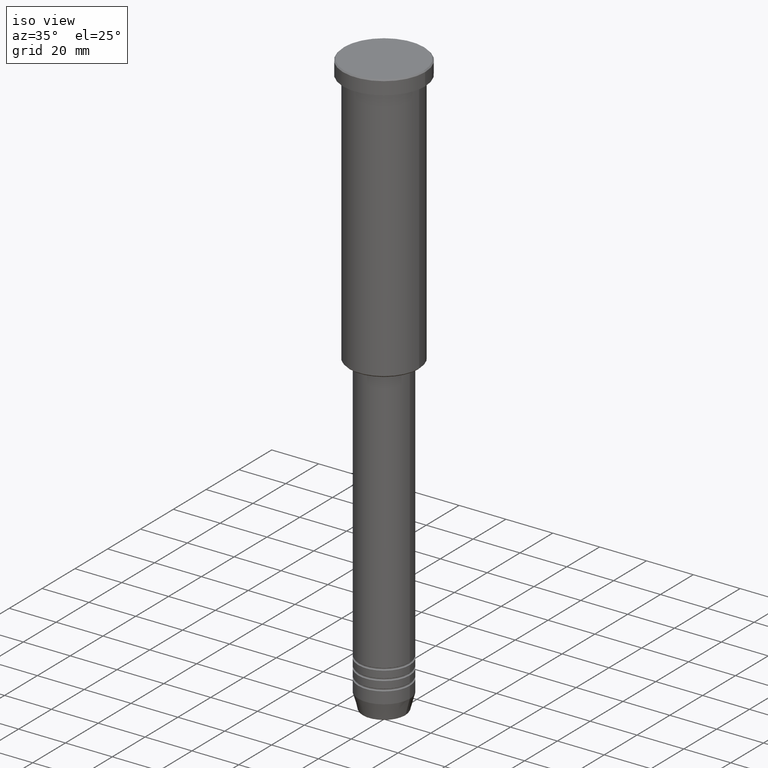
[diagram: clean part render]
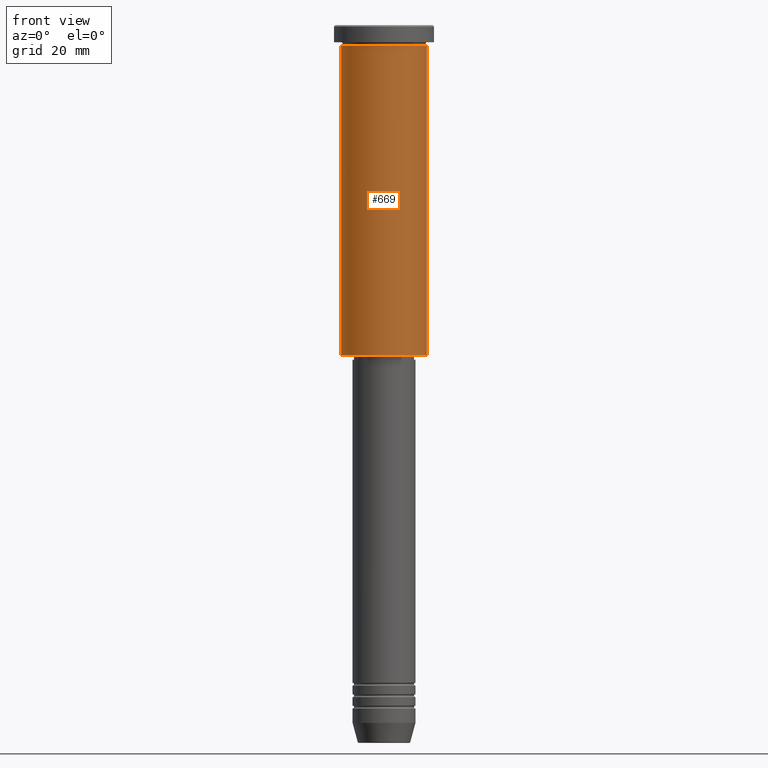
[diagram: tour spotlight — one face highlighted and labeled with its STEP entity id]
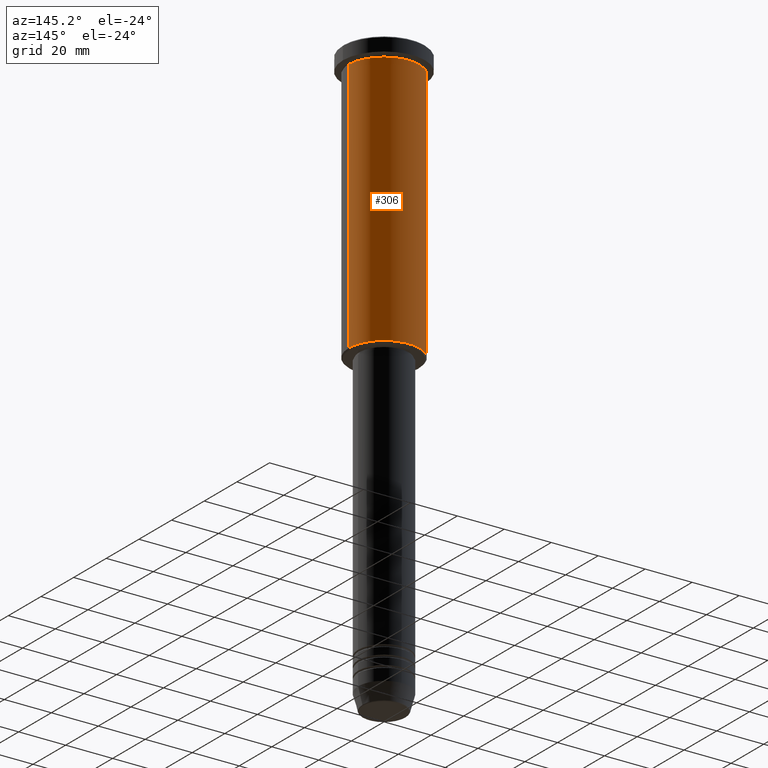
[diagram: tour spotlight — one face highlighted and labeled with its STEP entity id]
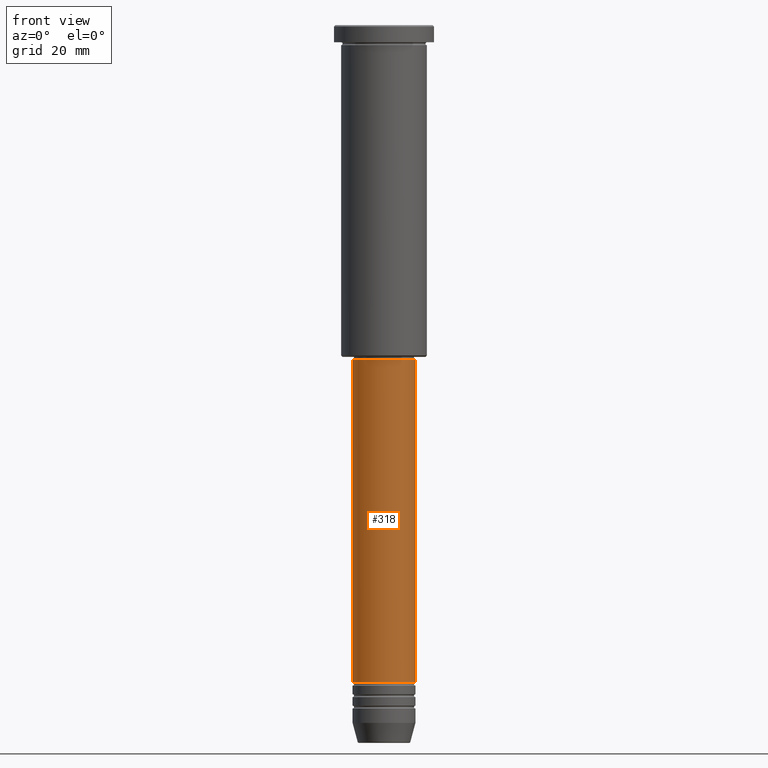
[diagram: tour spotlight — one face highlighted and labeled with its STEP entity id]
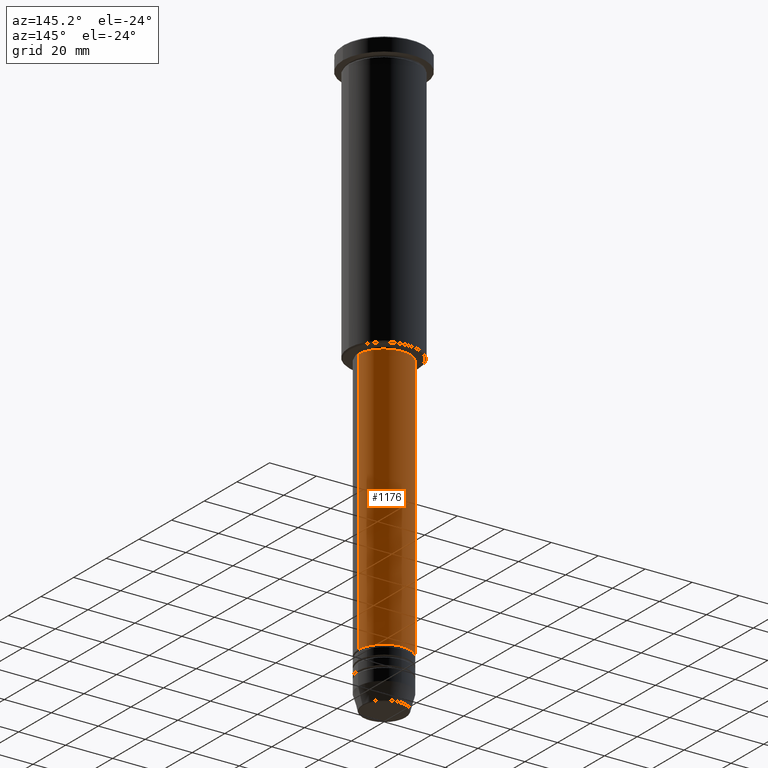
[diagram: tour spotlight — one face highlighted and labeled with its STEP entity id]
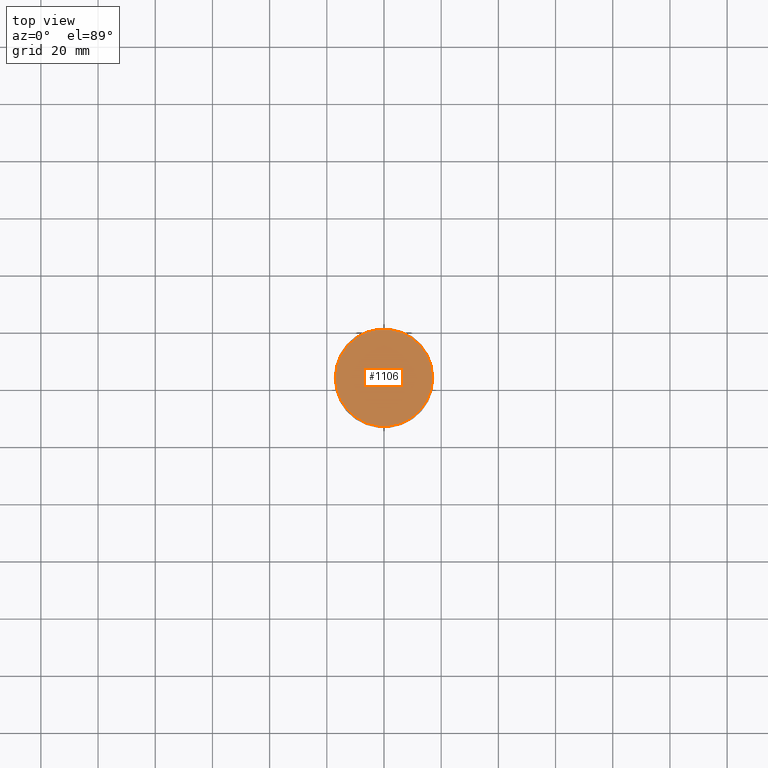
[diagram: tour spotlight — one face highlighted and labeled with its STEP entity id]
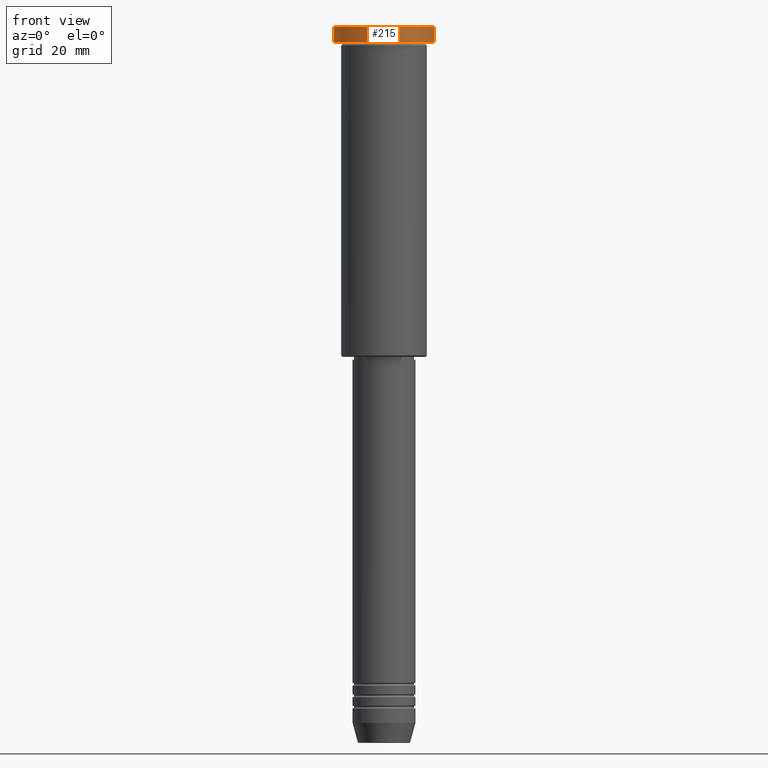
[diagram: tour spotlight — one face highlighted and labeled with its STEP entity id]
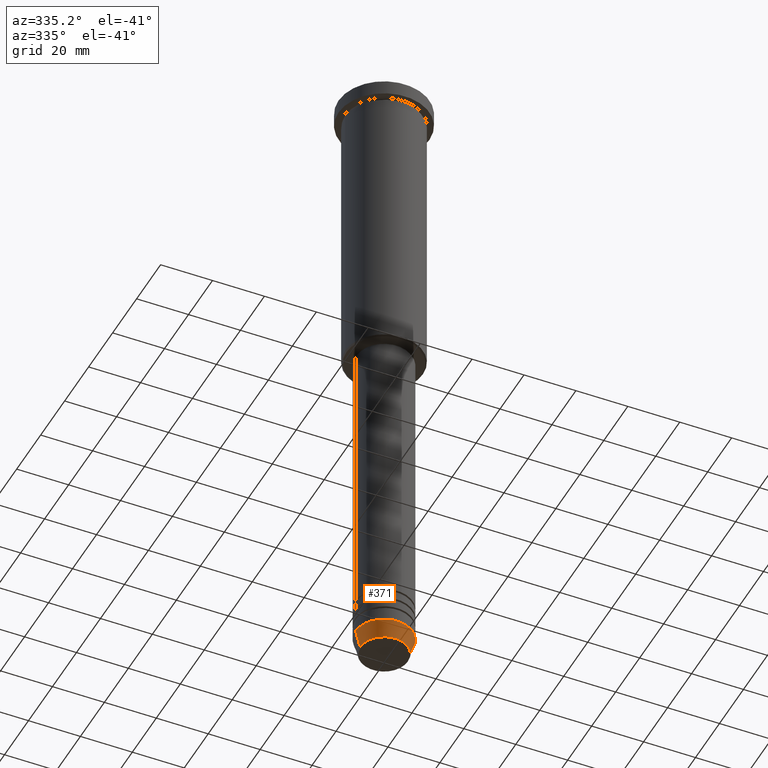
[diagram: tour spotlight — one face highlighted and labeled with its STEP entity id]
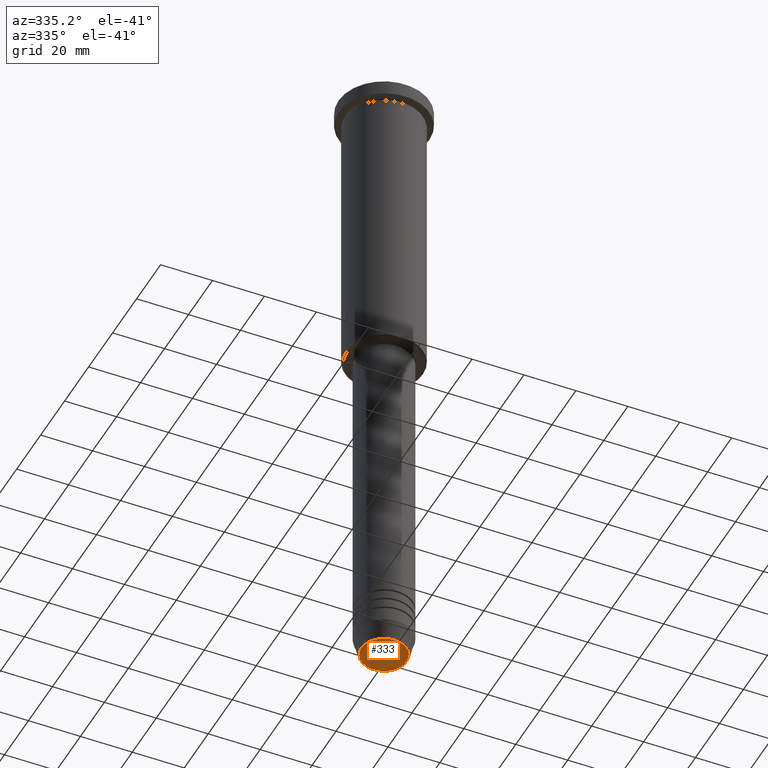
[diagram: tour spotlight — one face highlighted and labeled with its STEP entity id]
A machine part: a face-by-face anatomy tour. The part has 43 B-rep faces; the first image is the clean iso view, then the 8 largest visible faces are spotlighted one at a time (largest first), each with its STEP entity span.

Face 1 — front view, entity #669. In plain terms, the highlighted cylindrical surface (partial cylindrical patch) has radius 15 mm, axis along (-0, -0, 1).
Definition (entity closure, byte-faithful):
#95 = EDGE_CURVE ( 'NONE', #477, #619, #399, .T. ) ;
#112 = VECTOR ( 'NONE', #203, 1000.000000000000000 ) ;
#150 = DIRECTION ( 'NONE',  ( -0.000000000000000000, -0.000000000000000000, 1.000000000000000000 ) ) ;
#158 = CARTESIAN_POINT ( 'NONE',  ( 0.000000000000000000, 0.000000000000000000, -6.999999999999995559 ) ) ;
#195 = EDGE_CURVE ( 'NONE', #619, #656, #395, .T. ) ;
#203 = DIRECTION ( 'NONE',  ( -0.000000000000000000, -0.000000000000000000, 1.000000000000000000 ) ) ;
#204 = CARTESIAN_POINT ( 'NONE',  ( -15.00000000000000000, 1.836970198721029589E-15, -6.999999999999995559 ) ) ;
#253 = EDGE_CURVE ( 'NONE', #477, #693, #363, .T. ) ;
#290 = AXIS2_PLACEMENT_3D ( 'NONE', #158, #341, #436 ) ;
#298 = ORIENTED_EDGE ( 'NONE', *, *, #890, .T. ) ;
#301 = CARTESIAN_POINT ( 'NONE',  ( 15.00000000000000000, 0.000000000000000000, -115.5000000000000000 ) ) ;
#317 = CARTESIAN_POINT ( 'NONE',  ( 15.00000000000000000, 0.000000000000000000, 0.000000000000000000 ) ) ;
#328 = AXIS2_PLACEMENT_3D ( 'NONE', #1114, #947, #1107 ) ;
#332 = EDGE_LOOP ( 'NONE', ( #971, #746, #298, #473 ) ) ;
#341 = DIRECTION ( 'NONE',  ( -0.000000000000000000, -0.000000000000000000, 1.000000000000000000 ) ) ;
#363 = CIRCLE ( 'NONE', #959, 15.00000000000000000 ) ;
#395 = CIRCLE ( 'NONE', #290, 15.00000000000000000 ) ;
#396 = CARTESIAN_POINT ( 'NONE',  ( -15.00000000000000000, 1.836970198721029589E-15, -115.5000000000000000 ) ) ;
#399 = LINE ( 'NONE', #771, #112 ) ;
#436 = DIRECTION ( 'NONE',  ( 1.000000000000000000, 0.000000000000000000, 0.000000000000000000 ) ) ;
#473 = ORIENTED_EDGE ( 'NONE', *, *, #195, .F. ) ;
#477 = VERTEX_POINT ( 'NONE', #396 ) ;
#526 = VECTOR ( 'NONE', #150, 1000.000000000000000 ) ;
#552 = DIRECTION ( 'NONE',  ( -0.000000000000000000, -0.000000000000000000, 1.000000000000000000 ) ) ;
#556 = CARTESIAN_POINT ( 'NONE',  ( 15.00000000000000000, 0.000000000000000000, -6.999999999999995559 ) ) ;
#615 = LINE ( 'NONE', #317, #526 ) ;
#616 = CARTESIAN_POINT ( 'NONE',  ( 0.000000000000000000, 0.000000000000000000, -115.5000000000000000 ) ) ;
#619 = VERTEX_POINT ( 'NONE', #204 ) ;
#656 = VERTEX_POINT ( 'NONE', #556 ) ;
#669 = ADVANCED_FACE ( 'NONE', ( #762 ), #835, .T. ) ;
#693 = VERTEX_POINT ( 'NONE', #301 ) ;
#746 = ORIENTED_EDGE ( 'NONE', *, *, #253, .T. ) ;
#762 = FACE_OUTER_BOUND ( 'NONE', #332, .T. ) ;
#771 = CARTESIAN_POINT ( 'NONE',  ( -15.00000000000000000, 1.836970198721029589E-15, 0.000000000000000000 ) ) ;
#835 = CYLINDRICAL_SURFACE ( 'NONE', #328, 15.00000000000000000 ) ;
#890 = EDGE_CURVE ( 'NONE', #693, #656, #615, .T. ) ;
#947 = DIRECTION ( 'NONE',  ( -0.000000000000000000, -0.000000000000000000, 1.000000000000000000 ) ) ;
#959 = AXIS2_PLACEMENT_3D ( 'NONE', #616, #552, #984 ) ;
#971 = ORIENTED_EDGE ( 'NONE', *, *, #95, .F. ) ;
#984 = DIRECTION ( 'NONE',  ( -1.000000000000000000, 0.000000000000000000, 0.000000000000000000 ) ) ;
#1107 = DIRECTION ( 'NONE',  ( 1.000000000000000000, 0.000000000000000000, 0.000000000000000000 ) ) ;
#1114 = CARTESIAN_POINT ( 'NONE',  ( 0.000000000000000000, 0.000000000000000000, 0.000000000000000000 ) ) ;

Face 2 — auxiliary view, entity #306. In plain terms, the highlighted cylindrical surface (partial cylindrical patch) has radius 15 mm, axis along (-0, -0, 1).
Definition (entity closure, byte-faithful):
#46 = CARTESIAN_POINT ( 'NONE',  ( 0.000000000000000000, 0.000000000000000000, -6.999999999999995559 ) ) ;
#88 = DIRECTION ( 'NONE',  ( -0.000000000000000000, -0.000000000000000000, 1.000000000000000000 ) ) ;
#95 = EDGE_CURVE ( 'NONE', #477, #619, #399, .T. ) ;
#112 = VECTOR ( 'NONE', #203, 1000.000000000000000 ) ;
#133 = DIRECTION ( 'NONE',  ( 1.000000000000000000, 0.000000000000000000, 0.000000000000000000 ) ) ;
#150 = DIRECTION ( 'NONE',  ( -0.000000000000000000, -0.000000000000000000, 1.000000000000000000 ) ) ;
#186 = CARTESIAN_POINT ( 'NONE',  ( 0.000000000000000000, 0.000000000000000000, -115.5000000000000000 ) ) ;
#188 = ORIENTED_EDGE ( 'NONE', *, *, #95, .T. ) ;
#203 = DIRECTION ( 'NONE',  ( -0.000000000000000000, -0.000000000000000000, 1.000000000000000000 ) ) ;
#204 = CARTESIAN_POINT ( 'NONE',  ( -15.00000000000000000, 1.836970198721029589E-15, -6.999999999999995559 ) ) ;
#301 = CARTESIAN_POINT ( 'NONE',  ( 15.00000000000000000, 0.000000000000000000, -115.5000000000000000 ) ) ;
#306 = ADVANCED_FACE ( 'NONE', ( #701 ), #507, .T. ) ;
#317 = CARTESIAN_POINT ( 'NONE',  ( 15.00000000000000000, 0.000000000000000000, 0.000000000000000000 ) ) ;
#347 = AXIS2_PLACEMENT_3D ( 'NONE', #186, #929, #847 ) ;
#355 = ORIENTED_EDGE ( 'NONE', *, *, #661, .T. ) ;
#378 = CIRCLE ( 'NONE', #688, 15.00000000000000000 ) ;
#396 = CARTESIAN_POINT ( 'NONE',  ( -15.00000000000000000, 1.836970198721029589E-15, -115.5000000000000000 ) ) ;
#399 = LINE ( 'NONE', #771, #112 ) ;
#420 = ORIENTED_EDGE ( 'NONE', *, *, #890, .F. ) ;
#421 = DIRECTION ( 'NONE',  ( -0.000000000000000000, -0.000000000000000000, 1.000000000000000000 ) ) ;
#458 = ORIENTED_EDGE ( 'NONE', *, *, #467, .F. ) ;
#467 = EDGE_CURVE ( 'NONE', #656, #619, #378, .T. ) ;
#477 = VERTEX_POINT ( 'NONE', #396 ) ;
#507 = CYLINDRICAL_SURFACE ( 'NONE', #1112, 15.00000000000000000 ) ;
#526 = VECTOR ( 'NONE', #150, 1000.000000000000000 ) ;
#556 = CARTESIAN_POINT ( 'NONE',  ( 15.00000000000000000, 0.000000000000000000, -6.999999999999995559 ) ) ;
#615 = LINE ( 'NONE', #317, #526 ) ;
#619 = VERTEX_POINT ( 'NONE', #204 ) ;
#644 = CIRCLE ( 'NONE', #347, 15.00000000000000000 ) ;
#656 = VERTEX_POINT ( 'NONE', #556 ) ;
#661 = EDGE_CURVE ( 'NONE', #693, #477, #644, .T. ) ;
#688 = AXIS2_PLACEMENT_3D ( 'NONE', #46, #421, #133 ) ;
#693 = VERTEX_POINT ( 'NONE', #301 ) ;
#701 = FACE_OUTER_BOUND ( 'NONE', #923, .T. ) ;
#737 = DIRECTION ( 'NONE',  ( 1.000000000000000000, 0.000000000000000000, 0.000000000000000000 ) ) ;
#771 = CARTESIAN_POINT ( 'NONE',  ( -15.00000000000000000, 1.836970198721029589E-15, 0.000000000000000000 ) ) ;
#847 = DIRECTION ( 'NONE',  ( -1.000000000000000000, 0.000000000000000000, 0.000000000000000000 ) ) ;
#890 = EDGE_CURVE ( 'NONE', #693, #656, #615, .T. ) ;
#921 = CARTESIAN_POINT ( 'NONE',  ( 0.000000000000000000, 0.000000000000000000, 0.000000000000000000 ) ) ;
#923 = EDGE_LOOP ( 'NONE', ( #355, #188, #458, #420 ) ) ;
#929 = DIRECTION ( 'NONE',  ( -0.000000000000000000, -0.000000000000000000, 1.000000000000000000 ) ) ;
#1112 = AXIS2_PLACEMENT_3D ( 'NONE', #921, #88, #737 ) ;

Face 3 — front view, entity #318. In plain terms, the highlighted cylindrical surface (edge-blend (fillet) strip) has radius 11 mm, axis along (-0, -0, 1).
Definition (entity closure, byte-faithful):
#20 = AXIS2_PLACEMENT_3D ( 'NONE', #974, #151, #1122 ) ;
#31 = EDGE_CURVE ( 'NONE', #804, #877, #686, .T. ) ;
#51 = VERTEX_POINT ( 'NONE', #501 ) ;
#56 = CARTESIAN_POINT ( 'NONE',  ( -11.00000000000000000, 1.347111479062088405E-15, 0.000000000000000000 ) ) ;
#63 = DIRECTION ( 'NONE',  ( -0.000000000000000000, -0.000000000000000000, 1.000000000000000000 ) ) ;
#102 = AXIS2_PLACEMENT_3D ( 'NONE', #575, #672, #216 ) ;
#147 = ORIENTED_EDGE ( 'NONE', *, *, #1002, .F. ) ;
#151 = DIRECTION ( 'NONE',  ( -0.000000000000000000, -0.000000000000000000, 1.000000000000000000 ) ) ;
#178 = VECTOR ( 'NONE', #63, 1000.000000000000000 ) ;
#193 = ORIENTED_EDGE ( 'NONE', *, *, #274, .F. ) ;
#216 = DIRECTION ( 'NONE',  ( 1.000000000000000000, 0.000000000000000000, 0.000000000000000000 ) ) ;
#224 = CARTESIAN_POINT ( 'NONE',  ( -11.00000000000000000, 1.347111479062088405E-15, -229.9999999999998863 ) ) ;
#274 = EDGE_CURVE ( 'NONE', #804, #704, #527, .T. ) ;
#280 = LINE ( 'NONE', #1015, #178 ) ;
#281 = FACE_OUTER_BOUND ( 'NONE', #826, .T. ) ;
#284 = CARTESIAN_POINT ( 'NONE',  ( -11.00000000000000000, 1.347111479062088405E-15, -117.0000000000000142 ) ) ;
#318 = ADVANCED_FACE ( 'NONE', ( #281 ), #606, .T. ) ;
#463 = DIRECTION ( 'NONE',  ( -0.000000000000000000, -0.000000000000000000, 1.000000000000000000 ) ) ;
#466 = DIRECTION ( 'NONE',  ( -0.000000000000000000, -0.000000000000000000, 1.000000000000000000 ) ) ;
#501 = CARTESIAN_POINT ( 'NONE',  ( 11.00000000000000000, 0.000000000000000000, -117.0000000000000142 ) ) ;
#527 = LINE ( 'NONE', #56, #731 ) ;
#550 = CARTESIAN_POINT ( 'NONE',  ( 0.000000000000000000, 0.000000000000000000, -229.9999999999998863 ) ) ;
#575 = CARTESIAN_POINT ( 'NONE',  ( 0.000000000000000000, 0.000000000000000000, -117.0000000000000142 ) ) ;
#583 = EDGE_CURVE ( 'NONE', #877, #51, #280, .T. ) ;
#606 = CYLINDRICAL_SURFACE ( 'NONE', #20, 11.00000000000000000 ) ;
#672 = DIRECTION ( 'NONE',  ( -0.000000000000000000, -0.000000000000000000, 1.000000000000000000 ) ) ;
#686 = CIRCLE ( 'NONE', #1130, 11.00000000000000000 ) ;
#704 = VERTEX_POINT ( 'NONE', #284 ) ;
#731 = VECTOR ( 'NONE', #466, 1000.000000000000000 ) ;
#804 = VERTEX_POINT ( 'NONE', #224 ) ;
#826 = EDGE_LOOP ( 'NONE', ( #193, #1028, #986, #147 ) ) ;
#834 = DIRECTION ( 'NONE',  ( 1.000000000000000000, 0.000000000000000000, 0.000000000000000000 ) ) ;
#870 = CIRCLE ( 'NONE', #102, 11.00000000000000000 ) ;
#877 = VERTEX_POINT ( 'NONE', #886 ) ;
#886 = CARTESIAN_POINT ( 'NONE',  ( 11.00000000000000000, 0.000000000000000000, -229.9999999999998863 ) ) ;
#974 = CARTESIAN_POINT ( 'NONE',  ( 0.000000000000000000, 0.000000000000000000, 0.000000000000000000 ) ) ;
#986 = ORIENTED_EDGE ( 'NONE', *, *, #583, .T. ) ;
#1002 = EDGE_CURVE ( 'NONE', #704, #51, #870, .T. ) ;
#1015 = CARTESIAN_POINT ( 'NONE',  ( 11.00000000000000000, 0.000000000000000000, 0.000000000000000000 ) ) ;
#1028 = ORIENTED_EDGE ( 'NONE', *, *, #31, .T. ) ;
#1122 = DIRECTION ( 'NONE',  ( 1.000000000000000000, 0.000000000000000000, 0.000000000000000000 ) ) ;
#1130 = AXIS2_PLACEMENT_3D ( 'NONE', #550, #463, #834 ) ;

Face 4 — auxiliary view, entity #1176. In plain terms, the highlighted cylindrical surface (edge-blend (fillet) strip) has radius 11 mm, axis along (-0, -0, 1).
Definition (entity closure, byte-faithful):
#25 = AXIS2_PLACEMENT_3D ( 'NONE', #538, #457, #650 ) ;
#51 = VERTEX_POINT ( 'NONE', #501 ) ;
#53 = EDGE_CURVE ( 'NONE', #877, #804, #770, .T. ) ;
#56 = CARTESIAN_POINT ( 'NONE',  ( -11.00000000000000000, 1.347111479062088405E-15, 0.000000000000000000 ) ) ;
#63 = DIRECTION ( 'NONE',  ( -0.000000000000000000, -0.000000000000000000, 1.000000000000000000 ) ) ;
#83 = DIRECTION ( 'NONE',  ( 1.000000000000000000, 0.000000000000000000, 0.000000000000000000 ) ) ;
#90 = CYLINDRICAL_SURFACE ( 'NONE', #561, 11.00000000000000000 ) ;
#176 = FACE_OUTER_BOUND ( 'NONE', #630, .T. ) ;
#178 = VECTOR ( 'NONE', #63, 1000.000000000000000 ) ;
#208 = DIRECTION ( 'NONE',  ( -0.000000000000000000, -0.000000000000000000, 1.000000000000000000 ) ) ;
#224 = CARTESIAN_POINT ( 'NONE',  ( -11.00000000000000000, 1.347111479062088405E-15, -229.9999999999998863 ) ) ;
#255 = AXIS2_PLACEMENT_3D ( 'NONE', #487, #208, #1145 ) ;
#274 = EDGE_CURVE ( 'NONE', #804, #704, #527, .T. ) ;
#280 = LINE ( 'NONE', #1015, #178 ) ;
#284 = CARTESIAN_POINT ( 'NONE',  ( -11.00000000000000000, 1.347111479062088405E-15, -117.0000000000000142 ) ) ;
#293 = ORIENTED_EDGE ( 'NONE', *, *, #274, .T. ) ;
#457 = DIRECTION ( 'NONE',  ( -0.000000000000000000, -0.000000000000000000, 1.000000000000000000 ) ) ;
#461 = DIRECTION ( 'NONE',  ( -0.000000000000000000, -0.000000000000000000, 1.000000000000000000 ) ) ;
#466 = DIRECTION ( 'NONE',  ( -0.000000000000000000, -0.000000000000000000, 1.000000000000000000 ) ) ;
#487 = CARTESIAN_POINT ( 'NONE',  ( 0.000000000000000000, 0.000000000000000000, -229.9999999999998863 ) ) ;
#501 = CARTESIAN_POINT ( 'NONE',  ( 11.00000000000000000, 0.000000000000000000, -117.0000000000000142 ) ) ;
#527 = LINE ( 'NONE', #56, #731 ) ;
#538 = CARTESIAN_POINT ( 'NONE',  ( 0.000000000000000000, 0.000000000000000000, -117.0000000000000142 ) ) ;
#549 = CARTESIAN_POINT ( 'NONE',  ( 0.000000000000000000, 0.000000000000000000, 0.000000000000000000 ) ) ;
#561 = AXIS2_PLACEMENT_3D ( 'NONE', #549, #461, #83 ) ;
#583 = EDGE_CURVE ( 'NONE', #877, #51, #280, .T. ) ;
#630 = EDGE_LOOP ( 'NONE', ( #708, #293, #927, #891 ) ) ;
#650 = DIRECTION ( 'NONE',  ( 1.000000000000000000, 0.000000000000000000, 0.000000000000000000 ) ) ;
#704 = VERTEX_POINT ( 'NONE', #284 ) ;
#708 = ORIENTED_EDGE ( 'NONE', *, *, #53, .T. ) ;
#731 = VECTOR ( 'NONE', #466, 1000.000000000000000 ) ;
#770 = CIRCLE ( 'NONE', #255, 11.00000000000000000 ) ;
#804 = VERTEX_POINT ( 'NONE', #224 ) ;
#877 = VERTEX_POINT ( 'NONE', #886 ) ;
#886 = CARTESIAN_POINT ( 'NONE',  ( 11.00000000000000000, 0.000000000000000000, -229.9999999999998863 ) ) ;
#891 = ORIENTED_EDGE ( 'NONE', *, *, #583, .F. ) ;
#927 = ORIENTED_EDGE ( 'NONE', *, *, #1133, .F. ) ;
#1015 = CARTESIAN_POINT ( 'NONE',  ( 11.00000000000000000, 0.000000000000000000, 0.000000000000000000 ) ) ;
#1084 = CIRCLE ( 'NONE', #25, 11.00000000000000000 ) ;
#1133 = EDGE_CURVE ( 'NONE', #51, #704, #1084, .T. ) ;
#1145 = DIRECTION ( 'NONE',  ( 1.000000000000000000, 0.000000000000000000, 0.000000000000000000 ) ) ;
#1176 = ADVANCED_FACE ( 'NONE', ( #176 ), #90, .T. ) ;

Face 5 — top view, entity #1106. In plain terms, the highlighted planar face has unit normal (0, -0, 1).
Definition (entity closure, byte-faithful):
#236 = CARTESIAN_POINT ( 'NONE',  ( 0.000000000000000000, 0.000000000000000000, 0.000000000000000000 ) ) ;
#260 = CARTESIAN_POINT ( 'NONE',  ( 0.000000000000000000, 0.000000000000000000, 0.000000000000000000 ) ) ;
#330 = PLANE ( 'NONE',  #1137 ) ;
#374 = CARTESIAN_POINT ( 'NONE',  ( 0.000000000000000000, 0.000000000000000000, 0.000000000000000000 ) ) ;
#381 = CARTESIAN_POINT ( 'NONE',  ( 16.99999999999996092, 2.112515728529182095E-15, 0.000000000000000000 ) ) ;
#387 = ORIENTED_EDGE ( 'NONE', *, *, #632, .T. ) ;
#503 = DIRECTION ( 'NONE',  ( 1.000000000000000000, 0.000000000000000000, 0.000000000000000000 ) ) ;
#525 = CIRCLE ( 'NONE', #854, 16.99999999999996092 ) ;
#547 = ORIENTED_EDGE ( 'NONE', *, *, #751, .T. ) ;
#594 = DIRECTION ( 'NONE',  ( 0.000000000000000000, -0.000000000000000000, 1.000000000000000000 ) ) ;
#596 = AXIS2_PLACEMENT_3D ( 'NONE', #236, #1046, #951 ) ;
#632 = EDGE_CURVE ( 'NONE', #1000, #641, #525, .T. ) ;
#641 = VERTEX_POINT ( 'NONE', #852 ) ;
#743 = DIRECTION ( 'NONE',  ( 1.000000000000000000, 0.000000000000000000, 0.000000000000000000 ) ) ;
#751 = EDGE_CURVE ( 'NONE', #641, #1000, #1039, .T. ) ;
#852 = CARTESIAN_POINT ( 'NONE',  ( -16.99999999999996092, 0.000000000000000000, 0.000000000000000000 ) ) ;
#854 = AXIS2_PLACEMENT_3D ( 'NONE', #374, #1126, #743 ) ;
#919 = EDGE_LOOP ( 'NONE', ( #547, #387 ) ) ;
#951 = DIRECTION ( 'NONE',  ( 1.000000000000000000, 0.000000000000000000, 0.000000000000000000 ) ) ;
#1000 = VERTEX_POINT ( 'NONE', #381 ) ;
#1039 = CIRCLE ( 'NONE', #596, 16.99999999999996092 ) ;
#1046 = DIRECTION ( 'NONE',  ( -0.000000000000000000, -0.000000000000000000, 1.000000000000000000 ) ) ;
#1049 = FACE_OUTER_BOUND ( 'NONE', #919, .T. ) ;
#1106 = ADVANCED_FACE ( 'NONE', ( #1049 ), #330, .T. ) ;
#1126 = DIRECTION ( 'NONE',  ( -0.000000000000000000, -0.000000000000000000, 1.000000000000000000 ) ) ;
#1137 = AXIS2_PLACEMENT_3D ( 'NONE', #260, #594, #503 ) ;

Face 6 — front view, entity #215. In plain terms, the highlighted cylindrical surface (partial cylindrical patch) has radius 17.5 mm, axis along (-0, -0, 1).
Definition (entity closure, byte-faithful):
#40 = ORIENTED_EDGE ( 'NONE', *, *, #949, .F. ) ;
#113 = LINE ( 'NONE', #1132, #624 ) ;
#132 = ORIENTED_EDGE ( 'NONE', *, *, #779, .T. ) ;
#134 = CARTESIAN_POINT ( 'NONE',  ( -17.50000000000000000, 2.143131898507868248E-15, -0.5000000000000283107 ) ) ;
#135 = AXIS2_PLACEMENT_3D ( 'NONE', #954, #169, #532 ) ;
#153 = DIRECTION ( 'NONE',  ( 0.000000000000000000, 0.000000000000000000, -1.000000000000000000 ) ) ;
#169 = DIRECTION ( 'NONE',  ( -0.000000000000000000, -0.000000000000000000, 1.000000000000000000 ) ) ;
#215 = ADVANCED_FACE ( 'NONE', ( #649 ), #691, .T. ) ;
#237 = VERTEX_POINT ( 'NONE', #925 ) ;
#350 = ORIENTED_EDGE ( 'NONE', *, *, #1069, .T. ) ;
#368 = EDGE_LOOP ( 'NONE', ( #40, #866, #132, #350 ) ) ;
#409 = LINE ( 'NONE', #514, #1041 ) ;
#514 = CARTESIAN_POINT ( 'NONE',  ( -17.50000000000000000, 2.143131898507868248E-15, 0.000000000000000000 ) ) ;
#532 = DIRECTION ( 'NONE',  ( 1.000000000000000000, 0.000000000000000000, 0.000000000000000000 ) ) ;
#560 = CIRCLE ( 'NONE', #914, 17.50000000000000000 ) ;
#624 = VECTOR ( 'NONE', #677, 1000.000000000000000 ) ;
#649 = FACE_OUTER_BOUND ( 'NONE', #368, .T. ) ;
#677 = DIRECTION ( 'NONE',  ( -0.000000000000000000, -0.000000000000000000, 1.000000000000000000 ) ) ;
#691 = CYLINDRICAL_SURFACE ( 'NONE', #865, 17.50000000000000000 ) ;
#712 = DIRECTION ( 'NONE',  ( -0.000000000000000000, -0.000000000000000000, 1.000000000000000000 ) ) ;
#752 = EDGE_CURVE ( 'NONE', #237, #871, #1134, .T. ) ;
#779 = EDGE_CURVE ( 'NONE', #871, #1013, #113, .T. ) ;
#784 = DIRECTION ( 'NONE',  ( 1.000000000000000000, 0.000000000000000000, 0.000000000000000000 ) ) ;
#830 = DIRECTION ( 'NONE',  ( 1.000000000000000000, 0.000000000000000000, 0.000000000000000000 ) ) ;
#865 = AXIS2_PLACEMENT_3D ( 'NONE', #1153, #712, #830 ) ;
#866 = ORIENTED_EDGE ( 'NONE', *, *, #752, .T. ) ;
#871 = VERTEX_POINT ( 'NONE', #1060 ) ;
#876 = CARTESIAN_POINT ( 'NONE',  ( 17.50000000000000000, 0.000000000000000000, -0.5000000000000283107 ) ) ;
#904 = VERTEX_POINT ( 'NONE', #134 ) ;
#914 = AXIS2_PLACEMENT_3D ( 'NONE', #975, #153, #784 ) ;
#925 = CARTESIAN_POINT ( 'NONE',  ( -17.50000000000000000, 2.143131898507868248E-15, -5.999999999999995559 ) ) ;
#949 = EDGE_CURVE ( 'NONE', #237, #904, #409, .T. ) ;
#954 = CARTESIAN_POINT ( 'NONE',  ( 0.000000000000000000, 0.000000000000000000, -5.999999999999995559 ) ) ;
#975 = CARTESIAN_POINT ( 'NONE',  ( 0.000000000000000000, 0.000000000000000000, -0.5000000000000283107 ) ) ;
#1013 = VERTEX_POINT ( 'NONE', #876 ) ;
#1041 = VECTOR ( 'NONE', #1066, 1000.000000000000000 ) ;
#1060 = CARTESIAN_POINT ( 'NONE',  ( 17.50000000000000000, 0.000000000000000000, -5.999999999999995559 ) ) ;
#1066 = DIRECTION ( 'NONE',  ( -0.000000000000000000, -0.000000000000000000, 1.000000000000000000 ) ) ;
#1069 = EDGE_CURVE ( 'NONE', #1013, #904, #560, .T. ) ;
#1132 = CARTESIAN_POINT ( 'NONE',  ( 17.50000000000000000, 0.000000000000000000, 0.000000000000000000 ) ) ;
#1134 = CIRCLE ( 'NONE', #135, 17.50000000000000000 ) ;
#1153 = CARTESIAN_POINT ( 'NONE',  ( 0.000000000000000000, 0.000000000000000000, 0.000000000000000000 ) ) ;

Face 7 — auxiliary view, entity #371. In plain terms, the highlighted conical surface has half-angle 15 deg.
Definition (entity closure, byte-faithful):
#27 = FACE_OUTER_BOUND ( 'NONE', #1047, .T. ) ;
#37 = VECTOR ( 'NONE', #201, 1000.000000000000000 ) ;
#45 = VERTEX_POINT ( 'NONE', #498 ) ;
#92 = EDGE_CURVE ( 'NONE', #377, #45, #851, .T. ) ;
#99 = CARTESIAN_POINT ( 'NONE',  ( 0.000000000000000000, 0.000000000000000000, -244.0000000000000000 ) ) ;
#111 = CONICAL_SURFACE ( 'NONE', #129, 11.00000000000000000, 0.2617993877991500740 ) ;
#116 = CARTESIAN_POINT ( 'NONE',  ( -11.00000000000000000, 1.347111479062088405E-15, -244.0000000000000000 ) ) ;
#129 = AXIS2_PLACEMENT_3D ( 'NONE', #391, #1038, #1108 ) ;
#201 = DIRECTION ( 'NONE',  ( -0.2588190451025213501, 3.169619151431772337E-17, 0.9659258262890680902 ) ) ;
#202 = CARTESIAN_POINT ( 'NONE',  ( -9.223655072137189492, 1.238341722557647202E-15, -250.6294095225512422 ) ) ;
#222 = CARTESIAN_POINT ( 'NONE',  ( 0.000000000000000000, 0.000000000000000000, -250.6294095225512422 ) ) ;
#294 = DIRECTION ( 'NONE',  ( 1.000000000000000000, 0.000000000000000000, 0.000000000000000000 ) ) ;
#310 = CARTESIAN_POINT ( 'NONE',  ( 11.00000000000000000, 0.000000000000000000, -244.0000000000000000 ) ) ;
#334 = CARTESIAN_POINT ( 'NONE',  ( -11.00000000000000000, 1.347111479062088405E-15, -244.0000000000000000 ) ) ;
#371 = ADVANCED_FACE ( 'NONE', ( #27 ), #111, .T. ) ;
#377 = VERTEX_POINT ( 'NONE', #202 ) ;
#384 = LINE ( 'NONE', #116, #37 ) ;
#391 = CARTESIAN_POINT ( 'NONE',  ( 0.000000000000000000, 0.000000000000000000, -244.0000000000000000 ) ) ;
#446 = DIRECTION ( 'NONE',  ( 0.2588190451025213501, 0.000000000000000000, 0.9659258262890680902 ) ) ;
#481 = EDGE_CURVE ( 'NONE', #45, #663, #769, .T. ) ;
#483 = DIRECTION ( 'NONE',  ( -0.000000000000000000, -0.000000000000000000, 1.000000000000000000 ) ) ;
#498 = CARTESIAN_POINT ( 'NONE',  ( 9.223655072137189492, 0.000000000000000000, -250.6294095225512422 ) ) ;
#581 = ORIENTED_EDGE ( 'NONE', *, *, #685, .F. ) ;
#639 = AXIS2_PLACEMENT_3D ( 'NONE', #222, #1040, #860 ) ;
#663 = VERTEX_POINT ( 'NONE', #754 ) ;
#671 = EDGE_CURVE ( 'NONE', #377, #824, #384, .T. ) ;
#673 = CIRCLE ( 'NONE', #988, 11.00000000000000000 ) ;
#685 = EDGE_CURVE ( 'NONE', #824, #663, #673, .T. ) ;
#687 = ORIENTED_EDGE ( 'NONE', *, *, #92, .T. ) ;
#754 = CARTESIAN_POINT ( 'NONE',  ( 11.00000000000000000, 0.000000000000000000, -244.0000000000000000 ) ) ;
#759 = ORIENTED_EDGE ( 'NONE', *, *, #481, .T. ) ;
#769 = LINE ( 'NONE', #310, #1095 ) ;
#824 = VERTEX_POINT ( 'NONE', #334 ) ;
#851 = CIRCLE ( 'NONE', #639, 9.223655072137189492 ) ;
#860 = DIRECTION ( 'NONE',  ( 1.000000000000000000, 0.000000000000000000, 0.000000000000000000 ) ) ;
#911 = ORIENTED_EDGE ( 'NONE', *, *, #671, .F. ) ;
#988 = AXIS2_PLACEMENT_3D ( 'NONE', #99, #483, #294 ) ;
#1038 = DIRECTION ( 'NONE',  ( -0.000000000000000000, -0.000000000000000000, 1.000000000000000000 ) ) ;
#1040 = DIRECTION ( 'NONE',  ( -0.000000000000000000, -0.000000000000000000, 1.000000000000000000 ) ) ;
#1047 = EDGE_LOOP ( 'NONE', ( #911, #687, #759, #581 ) ) ;
#1095 = VECTOR ( 'NONE', #446, 1000.000000000000000 ) ;
#1108 = DIRECTION ( 'NONE',  ( 1.000000000000000000, 0.000000000000000000, 0.000000000000000000 ) ) ;

Face 8 — auxiliary view, entity #333. In plain terms, the highlighted planar face has unit normal (0, -0, 1).
Definition (entity closure, byte-faithful):
#19 = CARTESIAN_POINT ( 'NONE',  ( 0.000000000000000000, 0.000000000000000000, -251.0000000000000000 ) ) ;
#59 = CIRCLE ( 'NONE', #674, 8.740692158992656502 ) ;
#101 = CARTESIAN_POINT ( 'NONE',  ( 8.740692158992656502, 0.000000000000000000, -251.0000000000000000 ) ) ;
#196 = DIRECTION ( 'NONE',  ( 1.000000000000000000, 0.000000000000000000, 0.000000000000000000 ) ) ;
#263 = CIRCLE ( 'NONE', #1056, 8.740692158992656502 ) ;
#333 = ADVANCED_FACE ( 'NONE', ( #479 ), #379, .F. ) ;
#379 = PLANE ( 'NONE',  #905 ) ;
#380 = VERTEX_POINT ( 'NONE', #101 ) ;
#479 = FACE_OUTER_BOUND ( 'NONE', #531, .T. ) ;
#517 = CARTESIAN_POINT ( 'NONE',  ( 0.000000000000000000, 0.000000000000000000, -251.0000000000000000 ) ) ;
#528 = DIRECTION ( 'NONE',  ( 0.000000000000000000, 0.000000000000000000, -1.000000000000000000 ) ) ;
#531 = EDGE_LOOP ( 'NONE', ( #1088, #609 ) ) ;
#600 = DIRECTION ( 'NONE',  ( 1.000000000000000000, 0.000000000000000000, 0.000000000000000000 ) ) ;
#609 = ORIENTED_EDGE ( 'NONE', *, *, #1104, .T. ) ;
#674 = AXIS2_PLACEMENT_3D ( 'NONE', #517, #528, #600 ) ;
#692 = DIRECTION ( 'NONE',  ( 1.000000000000000000, 0.000000000000000000, 0.000000000000000000 ) ) ;
#811 = VERTEX_POINT ( 'NONE', #1085 ) ;
#814 = DIRECTION ( 'NONE',  ( 0.000000000000000000, 0.000000000000000000, -1.000000000000000000 ) ) ;
#905 = AXIS2_PLACEMENT_3D ( 'NONE', #19, #931, #196 ) ;
#931 = DIRECTION ( 'NONE',  ( 0.000000000000000000, -0.000000000000000000, 1.000000000000000000 ) ) ;
#1034 = EDGE_CURVE ( 'NONE', #380, #811, #59, .T. ) ;
#1056 = AXIS2_PLACEMENT_3D ( 'NONE', #1078, #814, #692 ) ;
#1078 = CARTESIAN_POINT ( 'NONE',  ( 0.000000000000000000, 0.000000000000000000, -251.0000000000000000 ) ) ;
#1085 = CARTESIAN_POINT ( 'NONE',  ( -8.740692158992656502, 1.099999016768739653E-15, -251.0000000000000000 ) ) ;
#1088 = ORIENTED_EDGE ( 'NONE', *, *, #1034, .T. ) ;
#1104 = EDGE_CURVE ( 'NONE', #811, #380, #263, .T. ) ;